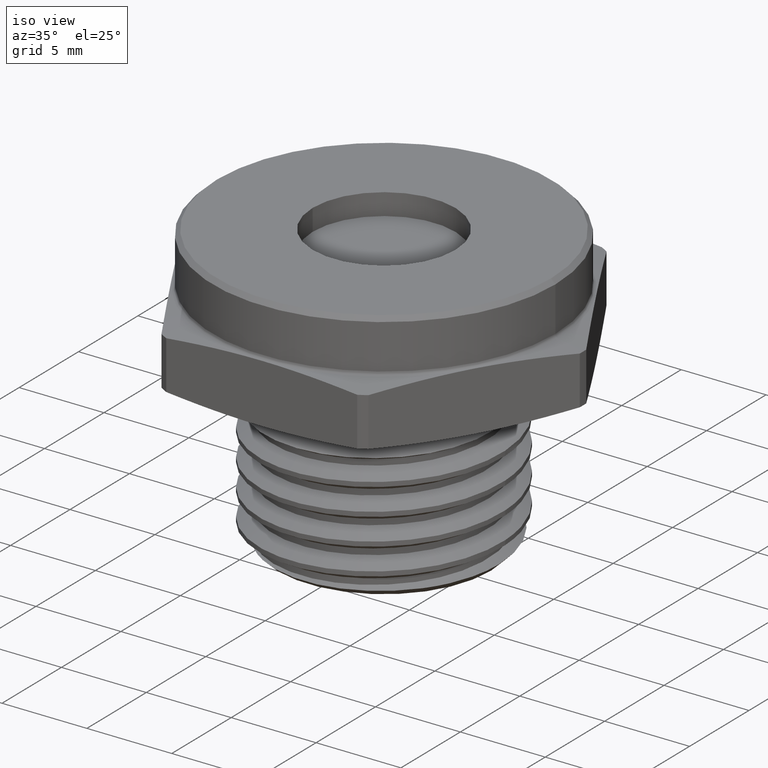
[diagram: clean part render]
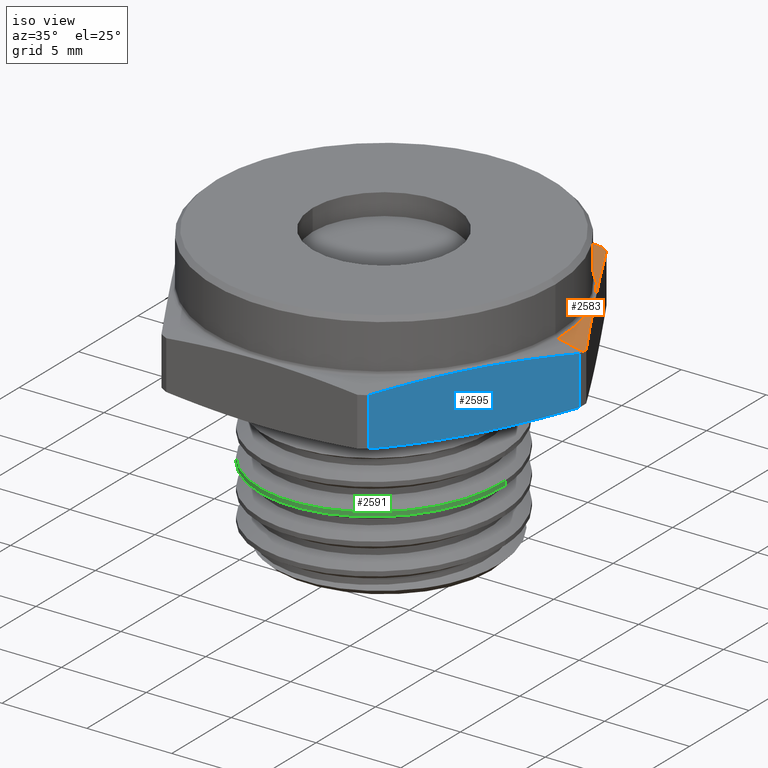
[diagram: same view with three faces highlighted in distinct colors, each labeled with its STEP entity id]
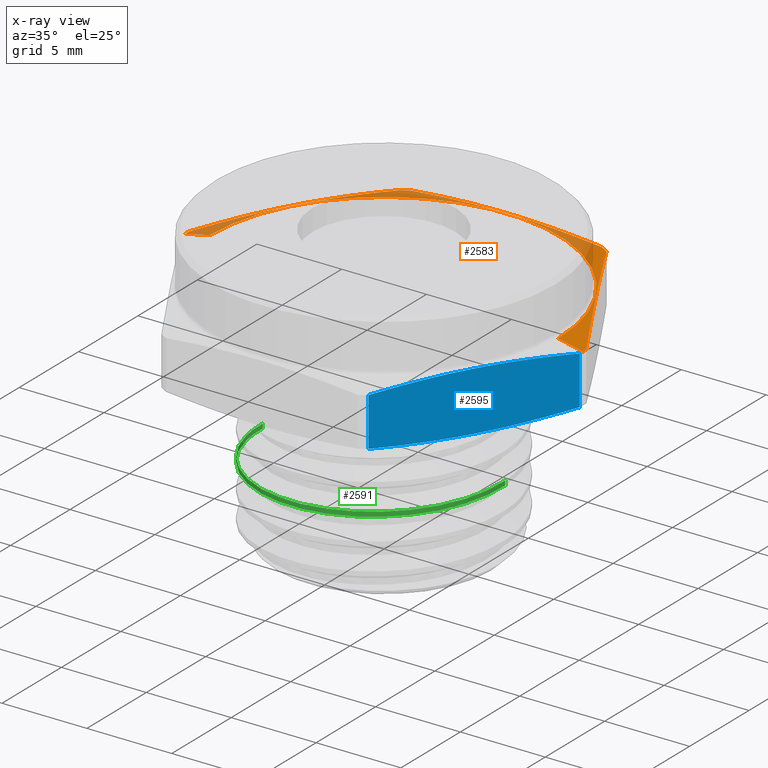
[diagram: x-ray of the same camera — body ghosted, the three highlighted faces saturated]
A machine part, iso view with three faces highlighted in distinct colors.
The next image is the same camera in x-ray (body ghosted, the three faces saturated) — at least one of them is partly hidden behind the body in this view.
Their STEP definitions:

[orange] entity #2583 — the highlighted conical surface has half-angle 78 deg.
#332 = ORIENTED_EDGE ( 'NONE', *, *, #1243, .F. ) ;
#333 = ORIENTED_EDGE ( 'NONE', *, *, #1242, .F. ) ;
#334 = ORIENTED_EDGE ( 'NONE', *, *, #1241, .T. ) ;
#335 = ORIENTED_EDGE ( 'NONE', *, *, #1240, .F. ) ;
#336 = ORIENTED_EDGE ( 'NONE', *, *, #1239, .T. ) ;
#337 = ORIENTED_EDGE ( 'NONE', *, *, #1238, .F. ) ;
#338 = ORIENTED_EDGE ( 'NONE', *, *, #1237, .T. ) ;
#339 = ORIENTED_EDGE ( 'NONE', *, *, #1236, .F. ) ;
#340 = ORIENTED_EDGE ( 'NONE', *, *, #1235, .T. ) ;
#341 = ORIENTED_EDGE ( 'NONE', *, *, #1234, .T. ) ;
#671 = LINE ( 'NONE', #1529, #677 ) ;
#672 = CIRCLE ( 'NONE', #931, 0.4038367064734578200 ) ;
#675 = CIRCLE ( 'NONE', #933, 0.4616537180435968900 ) ;
#676 = CIRCLE ( 'NONE', #932, 0.4616537180435968900 ) ;
#677 = VECTOR ( 'NONE', #1523, 39.37007874015748100 ) ;
#678 = CIRCLE ( 'NONE', #935, 0.4616537180435968900 ) ;
#679 = CIRCLE ( 'NONE', #934, 0.4616537180435968900 ) ;
#682 = LINE ( 'NONE', #1528, #683 ) ;
#683 = VECTOR ( 'NONE', #1527, 39.37007874015747400 ) ;
#724 = FACE_OUTER_BOUND ( 'NONE', #1284, .T. ) ;
#733 = CONICAL_SURFACE ( 'NONE', #957, 0.4616537180435968900, 1.361356816555569800 ) ;
#931 = AXIS2_PLACEMENT_3D ( 'NONE', #1530, #1531, #1532 ) ;
#932 = AXIS2_PLACEMENT_3D ( 'NONE', #1535, #1536, #1537 ) ;
#933 = AXIS2_PLACEMENT_3D ( 'NONE', #1543, #1544, #1545 ) ;
#934 = AXIS2_PLACEMENT_3D ( 'NONE', #1554, #1555, #1556 ) ;
#935 = AXIS2_PLACEMENT_3D ( 'NONE', #1561, #1562, #1563 ) ;
#957 = AXIS2_PLACEMENT_3D ( 'NONE', #1726, #1727, #1725 ) ;
#1234 = EDGE_CURVE ( 'NONE', #2566, #2568, #672, .T. ) ;
#1235 = EDGE_CURVE ( 'NONE', #2568, #2561, #671, .T. ) ;
#1236 = EDGE_CURVE ( 'NONE', #2560, #2561, #676, .T. ) ;
#1237 = EDGE_CURVE ( 'NONE', #2560, #2550, #2916, .T. ) ;
#1238 = EDGE_CURVE ( 'NONE', #2551, #2550, #675, .T. ) ;
#1239 = EDGE_CURVE ( 'NONE', #2551, #2546, #2917, .T. ) ;
#1240 = EDGE_CURVE ( 'NONE', #2549, #2546, #679, .T. ) ;
#1241 = EDGE_CURVE ( 'NONE', #2549, #2545, #2918, .T. ) ;
#1242 = EDGE_CURVE ( 'NONE', #2548, #2545, #678, .T. ) ;
#1243 = EDGE_CURVE ( 'NONE', #2566, #2548, #682, .T. ) ;
#1284 = EDGE_LOOP ( 'NONE', ( #341, #340, #339, #338, #337, #336, #335, #334, #333, #332 ) ) ;
#1523 = DIRECTION ( 'NONE',  ( 0.9781476007338040200, 1.197885328332316500E-016, -0.2079116908177665300 ) ) ;
#1527 = DIRECTION ( 'NONE',  ( -0.9781476007338042500, 0.0000000000000000000, -0.2079116908177663400 ) ) ;
#1528 = CARTESIAN_POINT ( 'NONE',  ( -0.4616537180435968900, 0.0000000000000000000, 0.1263637062743046000 ) ) ;
#1529 = CARTESIAN_POINT ( 'NONE',  ( 0.4616537180435968900, 5.653627481165655800E-017, 0.1263637062743044900 ) ) ;
#1530 = CARTESIAN_POINT ( 'NONE',  ( 1.698010646479936400E-017, 0.0000000000000000000, 0.1386530914596896300 ) ) ;
#1531 = DIRECTION ( 'NONE',  ( -6.123233995736748800E-017, -0.0000000000000000000, -1.000000000000000000 ) ) ;
#1532 = DIRECTION ( 'NONE',  ( 1.000000000000000000, 0.0000000000000000000, -4.227958896927027400E-017 ) ) ;
#1533 = CARTESIAN_POINT ( 'NONE',  ( 0.4246013859336650900, 0.07456882659873105600, 0.1338991866869405100 ) ) ;
#1534 = CARTESIAN_POINT ( 'NONE',  ( 0.3507402885326977300, 0.2025000000000002400, 0.1429124648880089600 ) ) ;
#1535 = CARTESIAN_POINT ( 'NONE',  ( 1.547509084172229300E-017, 0.0000000000000000000, 0.1263637062743045400 ) ) ;
#1536 = DIRECTION ( 'NONE',  ( -1.224646799147349800E-016, -0.0000000000000000000, -1.000000000000000000 ) ) ;
#1537 = DIRECTION ( 'NONE',  ( -1.000000000000000000, 0.0000000000000000000, 1.109536171359670600E-016 ) ) ;
#1538 = CARTESIAN_POINT ( 'NONE',  ( 0.4615319346341489300, 0.01060323989809651800, 0.1263637062743044900 ) ) ;
#1539 = CARTESIAN_POINT ( 'NONE',  ( 0.2768791911317303200, 0.3304311734012692600, 0.1338991866869405600 ) ) ;
#1540 = CARTESIAN_POINT ( 'NONE',  ( 0.2399486424312465300, 0.3943967601019038300, 0.1263637062743045200 ) ) ;
#1541 = CARTESIAN_POINT ( 'NONE',  ( 0.1478796550287042000, 0.4050000000000002500, 0.1338831222295150900 ) ) ;
#1542 = CARTESIAN_POINT ( 'NONE',  ( 0.07410851594145809200, 0.4050000000000001900, 0.1383966526278820600 ) ) ;
#1543 = CARTESIAN_POINT ( 'NONE',  ( 1.547509084172229300E-017, 0.0000000000000000000, 0.1263637062743045400 ) ) ;
#1544 = DIRECTION ( 'NONE',  ( -1.224646799147349800E-016, -0.0000000000000000000, -1.000000000000000000 ) ) ;
#1545 = DIRECTION ( 'NONE',  ( -1.000000000000000000, 0.0000000000000000000, 1.109536171359670600E-016 ) ) ;
#1546 = CARTESIAN_POINT ( 'NONE',  ( 0.2215832922029021500, 0.4050000000000002500, 0.1263637062743045200 ) ) ;
#1547 = CARTESIAN_POINT ( 'NONE',  ( -0.03669992187871323800, 0.4050000000000002500, 0.1384103904023835900 ) ) ;
#1548 = CARTESIAN_POINT ( 'NONE',  ( -0.07366059448121573000, 0.4050000000000002500, 0.1373227881641560200 ) ) ;
#1549 = CARTESIAN_POINT ( 'NONE',  ( -0.1476261358480750500, 0.4050000000000004200, 0.1331795119903692000 ) ) ;
#1550 = CARTESIAN_POINT ( 'NONE',  ( -0.1846688483680798400, 0.4050000000000001900, 0.1301298034248867800 ) ) ;
#1551 = CARTESIAN_POINT ( 'NONE',  ( -0.2215832922029023800, 0.4050000000000001400, 0.1263637062743045700 ) ) ;
#1552 = CARTESIAN_POINT ( 'NONE',  ( -0.2768791911317302600, 0.3304311734012691000, 0.1338991866869406500 ) ) ;
#1553 = CARTESIAN_POINT ( 'NONE',  ( -0.3507402885326976700, 0.2024999999999997900, 0.1429124648880091300 ) ) ;
#1554 = CARTESIAN_POINT ( 'NONE',  ( 1.547509084172229300E-017, 0.0000000000000000000, 0.1263637062743045400 ) ) ;
#1555 = DIRECTION ( 'NONE',  ( -1.224646799147349800E-016, -0.0000000000000000000, -1.000000000000000000 ) ) ;
#1556 = DIRECTION ( 'NONE',  ( -1.000000000000000000, 0.0000000000000000000, 1.109536171359670600E-016 ) ) ;
#1557 = CARTESIAN_POINT ( 'NONE',  ( -0.2399486424312465300, 0.3943967601019038300, 0.1263637062743045700 ) ) ;
#1558 = CARTESIAN_POINT ( 'NONE',  ( -0.4246013859336653100, 0.07456882659873020900, 0.1338991866869406500 ) ) ;
#1559 = CARTESIAN_POINT ( 'NONE',  ( -0.4615319346341490400, 0.01060323989809559800, 0.1263637062743046000 ) ) ;
#1561 = CARTESIAN_POINT ( 'NONE',  ( 1.547509084172229300E-017, 0.0000000000000000000, 0.1263637062743045400 ) ) ;
#1562 = DIRECTION ( 'NONE',  ( -1.224646799147349800E-016, -0.0000000000000000000, -1.000000000000000000 ) ) ;
#1563 = DIRECTION ( 'NONE',  ( -1.000000000000000000, 0.0000000000000000000, 1.109536171359670600E-016 ) ) ;
#1665 = CARTESIAN_POINT ( 'NONE',  ( -0.4615319346341490400, 0.01060323989809559800, 0.1263637062743046000 ) ) ;
#1666 = CARTESIAN_POINT ( 'NONE',  ( -0.2215832922029023800, 0.4050000000000001400, 0.1263637062743045700 ) ) ;
#1668 = CARTESIAN_POINT ( 'NONE',  ( -0.4616537180435968900, 0.0000000000000000000, 0.1263637062743046000 ) ) ;
#1669 = CARTESIAN_POINT ( 'NONE',  ( -0.2399486424312465300, 0.3943967601019038300, 0.1263637062743045700 ) ) ;
#1670 = CARTESIAN_POINT ( 'NONE',  ( 0.2399486424312465300, 0.3943967601019038300, 0.1263637062743045200 ) ) ;
#1671 = CARTESIAN_POINT ( 'NONE',  ( 0.2215832922029021500, 0.4050000000000002500, 0.1263637062743045200 ) ) ;
#1679 = CARTESIAN_POINT ( 'NONE',  ( 0.4615319346341489300, 0.01060323989809651800, 0.1263637062743044900 ) ) ;
#1680 = CARTESIAN_POINT ( 'NONE',  ( 0.4616537180435968900, 5.653627481165655800E-017, 0.1263637062743044900 ) ) ;
#1683 = CARTESIAN_POINT ( 'NONE',  ( -0.4038367064734579800, 0.0000000000000000000, 0.1386530914596896500 ) ) ;
#1725 = DIRECTION ( 'NONE',  ( -1.000000000000000000, 0.0000000000000000000, 1.109536171359670600E-016 ) ) ;
#1726 = CARTESIAN_POINT ( 'NONE',  ( 1.547509084172229300E-017, 0.0000000000000000000, 0.1263637062743045400 ) ) ;
#1727 = DIRECTION ( 'NONE',  ( -1.224646799147349800E-016, -0.0000000000000000000, -1.000000000000000000 ) ) ;
#2545 = VERTEX_POINT ( 'NONE', #1665 ) ;
#2546 = VERTEX_POINT ( 'NONE', #1666 ) ;
#2548 = VERTEX_POINT ( 'NONE', #1668 ) ;
#2549 = VERTEX_POINT ( 'NONE', #1669 ) ;
#2550 = VERTEX_POINT ( 'NONE', #1670 ) ;
#2551 = VERTEX_POINT ( 'NONE', #1671 ) ;
#2560 = VERTEX_POINT ( 'NONE', #1679 ) ;
#2561 = VERTEX_POINT ( 'NONE', #1680 ) ;
#2566 = VERTEX_POINT ( 'NONE', #1683 ) ;
#2568 = VERTEX_POINT ( 'NONE', #2885 ) ;
#2583 = ADVANCED_FACE ( 'NONE', ( #724 ), #733, .T. ) ;
#2885 = CARTESIAN_POINT ( 'NONE',  ( 0.4038367064734577600, 4.945573299609291600E-017, 0.1386530914596896000 ) ) ;
#2916 = B_SPLINE_CURVE_WITH_KNOTS ( 'NONE', 3,
 ( #1538, #1533, #1534, #1539, #1540 ),
 .UNSPECIFIED., .F., .F.,
 ( 4, 1, 4 ),
 ( 1.960092707716520800E-006, 0.005630175714661432700, 0.01125839133661515000 ),
 .UNSPECIFIED. ) ;
#2917 = B_SPLINE_CURVE_WITH_KNOTS ( 'NONE', 3,
 ( #1546, #1541, #1542, #1547, #1548, #1549, #1550, #1551 ),
 .UNSPECIFIED., .F., .F.,
 ( 4, 2, 2, 4 ),
 ( 0.02276292448879223300, 0.02840779419872965100, 0.03123022905369836000, 0.03405266390866706900 ),
 .UNSPECIFIED. ) ;
#2918 = B_SPLINE_CURVE_WITH_KNOTS ( 'NONE', 3,
 ( #1557, #1552, #1553, #1558, #1559 ),
 .UNSPECIFIED., .F., .F.,
 ( 4, 1, 4 ),
 ( 1.960092708449298800E-006, 0.005630175714662177800, 0.01125839133661590700 ),
 .UNSPECIFIED. ) ;

[blue] entity #2595 — the highlighted planar face has unit normal (-0.866, 0.5, 0).
#290 = ORIENTED_EDGE ( 'NONE', *, *, #841, .F. ) ;
#291 = ORIENTED_EDGE ( 'NONE', *, *, #839, .F. ) ;
#292 = ORIENTED_EDGE ( 'NONE', *, *, #840, .F. ) ;
#294 = ORIENTED_EDGE ( 'NONE', *, *, #838, .F. ) ;
#562 = LINE ( 'NONE', #2651, #565 ) ;
#563 = LINE ( 'NONE', #2656, #566 ) ;
#565 = VECTOR ( 'NONE', #2640, 39.37007874015748100 ) ;
#566 = VECTOR ( 'NONE', #2660, 39.37007874015748100 ) ;
#720 = FACE_OUTER_BOUND ( 'NONE', #1258, .T. ) ;
#838 = EDGE_CURVE ( 'NONE', #1295, #1355, #562, .T. ) ;
#839 = EDGE_CURVE ( 'NONE', #1286, #1295, #1395, .T. ) ;
#840 = EDGE_CURVE ( 'NONE', #1283, #1286, #563, .T. ) ;
#841 = EDGE_CURVE ( 'NONE', #1355, #1283, #1396, .T. ) ;
#972 = AXIS2_PLACEMENT_3D ( 'NONE', #1762, #1766, #1767 ) ;
#1258 = EDGE_LOOP ( 'NONE', ( #294, #291, #292, #290 ) ) ;
#1283 = VERTEX_POINT ( 'NONE', #1579 ) ;
#1286 = VERTEX_POINT ( 'NONE', #1580 ) ;
#1295 = VERTEX_POINT ( 'NONE', #1583 ) ;
#1355 = VERTEX_POINT ( 'NONE', #1628 ) ;
#1395 = B_SPLINE_CURVE_WITH_KNOTS ( 'NONE', 3,
 ( #2657, #2655, #2646, #2658, #2659 ),
 .UNSPECIFIED., .F., .F.,
 ( 4, 1, 4 ),
 ( 1.960092708429071200E-006, 0.005630175714662156100, 0.01125839133661588200 ),
 .UNSPECIFIED. ) ;
#1396 = B_SPLINE_CURVE_WITH_KNOTS ( 'NONE', 3,
 ( #2663, #2662, #2661, #2664, #2665 ),
 .UNSPECIFIED., .F., .F.,
 ( 4, 1, 4 ),
 ( 1.960092707715347300E-006, 0.005630175714661443200, 0.01125839133661517100 ),
 .UNSPECIFIED. ) ;
#1579 = CARTESIAN_POINT ( 'NONE',  ( 0.2399486424312466400, -0.3943967601019038300, 0.01363629372569551700 ) ) ;
#1580 = CARTESIAN_POINT ( 'NONE',  ( 0.2399486424312466100, -0.3943967601019037200, 0.1263637062743045200 ) ) ;
#1583 = CARTESIAN_POINT ( 'NONE',  ( 0.4615319346341489300, -0.01060323989809555800, 0.1263637062743044900 ) ) ;
#1628 = CARTESIAN_POINT ( 'NONE',  ( 0.4615319346341489300, -0.01060323989809555800, 0.01363629372569551700 ) ) ;
#1760 = PLANE ( 'NONE',  #972 ) ;
#1762 = CARTESIAN_POINT ( 'NONE',  ( 0.2338268590217984500, -0.4050000000000003000, 0.1400000000000000100 ) ) ;
#1766 = DIRECTION ( 'NONE',  ( -0.8660254037844391500, 0.4999999999999992200, 0.0000000000000000000 ) ) ;
#1767 = DIRECTION ( 'NONE',  ( -0.4999999999999991700, -0.8660254037844390400, 0.0000000000000000000 ) ) ;
#2595 = ADVANCED_FACE ( 'NONE', ( #720 ), #1760, .F. ) ;
#2640 = DIRECTION ( 'NONE',  ( -1.224646799147349800E-016, -0.0000000000000000000, -1.000000000000000000 ) ) ;
#2646 = CARTESIAN_POINT ( 'NONE',  ( 0.3507402885326976700, -0.2024999999999996800, 0.1429124648880090400 ) ) ;
#2651 = CARTESIAN_POINT ( 'NONE',  ( 0.4615319346341489900, -0.01060323989809556200, -1.356806347704081000E-017 ) ) ;
#2655 = CARTESIAN_POINT ( 'NONE',  ( 0.2768791911317303200, -0.3304311734012691000, 0.1338991866869405100 ) ) ;
#2656 = CARTESIAN_POINT ( 'NONE',  ( 0.2399486424312466400, -0.3943967601019038300, 1.356806347704081000E-017 ) ) ;
#2657 = CARTESIAN_POINT ( 'NONE',  ( 0.2399486424312466100, -0.3943967601019037200, 0.1263637062743045200 ) ) ;
#2658 = CARTESIAN_POINT ( 'NONE',  ( 0.4246013859336654200, -0.07456882659873032000, 0.1338991866869405600 ) ) ;
#2659 = CARTESIAN_POINT ( 'NONE',  ( 0.4615319346341489300, -0.01060323989809555800, 0.1263637062743044900 ) ) ;
#2660 = DIRECTION ( 'NONE',  ( 1.224646799147349800E-016, 0.0000000000000000000, 1.000000000000000000 ) ) ;
#2661 = CARTESIAN_POINT ( 'NONE',  ( 0.3507402885326977300, -0.2024999999999999000, -0.002912464888009015700 ) ) ;
#2662 = CARTESIAN_POINT ( 'NONE',  ( 0.4246013859336652500, -0.07456882659873033400, 0.006100813313059473400 ) ) ;
#2663 = CARTESIAN_POINT ( 'NONE',  ( 0.4615319346341489300, -0.01060323989809555800, 0.01363629372569551700 ) ) ;
#2664 = CARTESIAN_POINT ( 'NONE',  ( 0.2768791911317303200, -0.3304311734012692100, 0.006100813313059502000 ) ) ;
#2665 = CARTESIAN_POINT ( 'NONE',  ( 0.2399486424312466400, -0.3943967601019038300, 0.01363629372569551700 ) ) ;

[green] entity #2591 — the highlighted cylindrical surface (partial cylindrical patch) has radius 7.1438 mm, axis along (-0, -0, 1).
#544 = VECTOR ( 'NONE', #1048, 39.37007874015748100 ) ;
#547 = LINE ( 'NONE', #1046, #544 ) ;
#552 = VECTOR ( 'NONE', #1086, 39.37007874015748100 ) ;
#553 = LINE ( 'NONE', #1084, #552 ) ;
#742 = FACE_OUTER_BOUND ( 'NONE', #1276, .T. ) ;
#747 = CYLINDRICAL_SURFACE ( 'NONE', #967, 0.2812500000000000600 ) ;
#817 = EDGE_CURVE ( 'NONE', #2540, #2534, #547, .T. ) ;
#823 = EDGE_CURVE ( 'NONE', #2535, #1274, #553, .T. ) ;
#829 = EDGE_CURVE ( 'NONE', #2535, #2540, #1389, .T. ) ;
#830 = EDGE_CURVE ( 'NONE', #1274, #2534, #1390, .T. ) ;
#967 = AXIS2_PLACEMENT_3D ( 'NONE', #1750, #1751, #1749 ) ;
#1046 = CARTESIAN_POINT ( 'NONE',  ( -0.2812500000000000600, 3.444319122601931000E-017, -0.3900000000000000100 ) ) ;
#1048 = DIRECTION ( 'NONE',  ( -0.0000000000000000000, -0.0000000000000000000, 1.000000000000000000 ) ) ;
#1084 = CARTESIAN_POINT ( 'NONE',  ( 0.2812500000000000600, 0.0000000000000000000, -0.3900000000000000100 ) ) ;
#1086 = DIRECTION ( 'NONE',  ( -0.0000000000000000000, -0.0000000000000000000, 1.000000000000000000 ) ) ;
#1121 = CARTESIAN_POINT ( 'NONE',  ( 0.2812500000000000000, -0.1164968999536188400, -0.2064062321618985700 ) ) ;
#1122 = CARTESIAN_POINT ( 'NONE',  ( 0.2812499999999999400, 8.116003072549823300E-017, -0.2024999979162771500 ) ) ;
#1132 = CARTESIAN_POINT ( 'NONE',  ( 0.2812499999997584200, -0.1164968999538605900, -0.1959579738442330500 ) ) ;
#1133 = CARTESIAN_POINT ( 'NONE',  ( 0.2812500000000000000, 8.116393866853513800E-017, -0.1920517395986001400 ) ) ;
#1134 = CARTESIAN_POINT ( 'NONE',  ( 0.1988745842865448400, -0.1988729801276532300, -0.2103124598819326200 ) ) ;
#1135 = CARTESIAN_POINT ( 'NONE',  ( 0.1164986987281159000, -0.2812495301504512900, -0.2142187098819326200 ) ) ;
#1136 = CARTESIAN_POINT ( 'NONE',  ( 1.134311630388287200E-006, -0.2812499999977125500, -0.2181249598819326200 ) ) ;
#1137 = CARTESIAN_POINT ( 'NONE',  ( -0.1164964301048551400, -0.2812504698449738700, -0.2220312098819326500 ) ) ;
#1138 = CARTESIAN_POINT ( 'NONE',  ( -0.1988729801276532300, -0.1988745842865448400, -0.2259374598819325900 ) ) ;
#1139 = CARTESIAN_POINT ( 'NONE',  ( -0.2812495301504512900, -0.1164986987281159500, -0.2298437098819326200 ) ) ;
#1140 = CARTESIAN_POINT ( 'NONE',  ( -0.2812499999977125500, -1.134311630405508700E-006, -0.2337499598819326200 ) ) ;
#1141 = CARTESIAN_POINT ( 'NONE',  ( -0.2812500000000000000, -5.671558145937019800E-007, -0.2337499788990890800 ) ) ;
#1142 = CARTESIAN_POINT ( 'NONE',  ( -0.2812499999999999400, -1.156013189011224800E-016, -0.2337499979162771800 ) ) ;
#1145 = CARTESIAN_POINT ( 'NONE',  ( 0.1988745842865448400, -0.1988729801276532300, -0.1998642015642555500 ) ) ;
#1146 = CARTESIAN_POINT ( 'NONE',  ( 0.1164986987281159500, -0.2812495301504513400, -0.2037704515642555500 ) ) ;
#1147 = CARTESIAN_POINT ( 'NONE',  ( 1.134311630388287500E-006, -0.2812499999977126100, -0.2076767015642555800 ) ) ;
#1148 = CARTESIAN_POINT ( 'NONE',  ( -0.1164964301048551400, -0.2812504698449739300, -0.2115829515642555500 ) ) ;
#1149 = CARTESIAN_POINT ( 'NONE',  ( -0.1988729801276532300, -0.1988745842865448400, -0.2154892015642555800 ) ) ;
#1150 = CARTESIAN_POINT ( 'NONE',  ( -0.2812495301504513400, -0.1164986987281159500, -0.2193954515642555500 ) ) ;
#1151 = CARTESIAN_POINT ( 'NONE',  ( -0.2812499999977126100, -1.134311630405509100E-006, -0.2233017015642555500 ) ) ;
#1152 = CARTESIAN_POINT ( 'NONE',  ( -0.2812500000000000000, -5.671558018796343100E-007, -0.2233017205814124300 ) ) ;
#1153 = CARTESIAN_POINT ( 'NONE',  ( -0.2812500000000000000, -1.155979320171571700E-016, -0.2233017395986001700 ) ) ;
#1274 = VERTEX_POINT ( 'NONE', #1577 ) ;
#1276 = EDGE_LOOP ( 'NONE', ( #1365, #1361, #1370, #1325 ) ) ;
#1325 = ORIENTED_EDGE ( 'NONE', *, *, #830, .T. ) ;
#1361 = ORIENTED_EDGE ( 'NONE', *, *, #829, .F. ) ;
#1365 = ORIENTED_EDGE ( 'NONE', *, *, #817, .F. ) ;
#1370 = ORIENTED_EDGE ( 'NONE', *, *, #823, .T. ) ;
#1389 =( BOUNDED_CURVE ( )  B_SPLINE_CURVE ( 2, ( #1122, #1121, #1134, #1135, #1136, #1137, #1138, #1139, #1140, #1141, #1142 ),
 .UNSPECIFIED., .F., .F. ) 
 B_SPLINE_CURVE_WITH_KNOTS ( ( 3, 2, 2, 2, 2, 3 ),
 ( 0.4285715226697760500, 0.4464285714285714500, 0.4642857142857143000, 0.4821428571428571500, 0.5000000000000000000, 0.5000000940983475600 ),
 .UNSPECIFIED. ) 
 CURVE ( )  GEOMETRIC_REPRESENTATION_ITEM ( )  RATIONAL_B_SPLINE_CURVE ( ( 0.9999991977694852000, 0.9238799336286578300, 1.000000000000000000, 0.9238795325112867400, 1.000000000000000000, 0.9238795325112867400, 1.000000000000000000, 0.9238795325112867400, 1.000000000000000000, 0.9999995988826284600, 0.9999991977694842000 ) ) 
 REPRESENTATION_ITEM ( '' )  );
#1390 =( BOUNDED_CURVE ( )  B_SPLINE_CURVE ( 2, ( #1133, #1132, #1145, #1146, #1147, #1148, #1149, #1150, #1151, #1152, #1153 ),
 .UNSPECIFIED., .F., .F. ) 
 B_SPLINE_CURVE_WITH_KNOTS ( ( 3, 2, 2, 2, 2, 3 ),
 ( 0.2857143798126815500, 0.3035714285714286000, 0.3214285714285715100, 0.3392857142857143000, 0.3571428571428572100, 0.3571429512412068700 ),
 .UNSPECIFIED. ) 
 CURVE ( )  GEOMETRIC_REPRESENTATION_ITEM ( )  RATIONAL_B_SPLINE_CURVE ( ( 0.9999991977690725300, 0.9238799336288641100, 1.000000000000000000, 0.9238795325112867400, 1.000000000000000000, 0.9238795325112867400, 1.000000000000000000, 0.9238795325112867400, 1.000000000000000000, 0.9999995988826194700, 0.9999991977694662200 ) ) 
 REPRESENTATION_ITEM ( '' )  );
#1577 = CARTESIAN_POINT ( 'NONE',  ( 0.2812500000000000000, 8.116393866853513800E-017, -0.1920517395986001400 ) ) ;
#1654 = CARTESIAN_POINT ( 'NONE',  ( -0.2812500000000000000, -1.155979320171571700E-016, -0.2233017395986001700 ) ) ;
#1655 = CARTESIAN_POINT ( 'NONE',  ( 0.2812499999999999400, 8.116003072549823300E-017, -0.2024999979162771500 ) ) ;
#1660 = CARTESIAN_POINT ( 'NONE',  ( -0.2812499999999999400, -1.156013189011224800E-016, -0.2337499979162771800 ) ) ;
#1749 = DIRECTION ( 'NONE',  ( 1.000000000000000000, 0.0000000000000000000, 0.0000000000000000000 ) ) ;
#1750 = CARTESIAN_POINT ( 'NONE',  ( 0.0000000000000000000, 0.0000000000000000000, -0.3900000000000000100 ) ) ;
#1751 = DIRECTION ( 'NONE',  ( -0.0000000000000000000, -0.0000000000000000000, 1.000000000000000000 ) ) ;
#2534 = VERTEX_POINT ( 'NONE', #1654 ) ;
#2535 = VERTEX_POINT ( 'NONE', #1655 ) ;
#2540 = VERTEX_POINT ( 'NONE', #1660 ) ;
#2591 = ADVANCED_FACE ( 'NONE', ( #742 ), #747, .T. ) ;